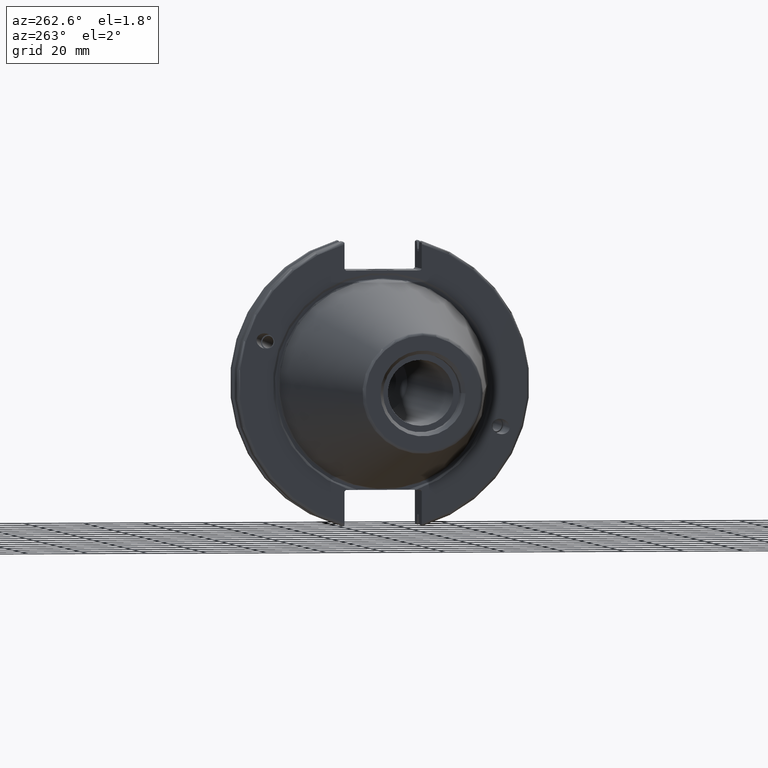
[diagram: clean part render]
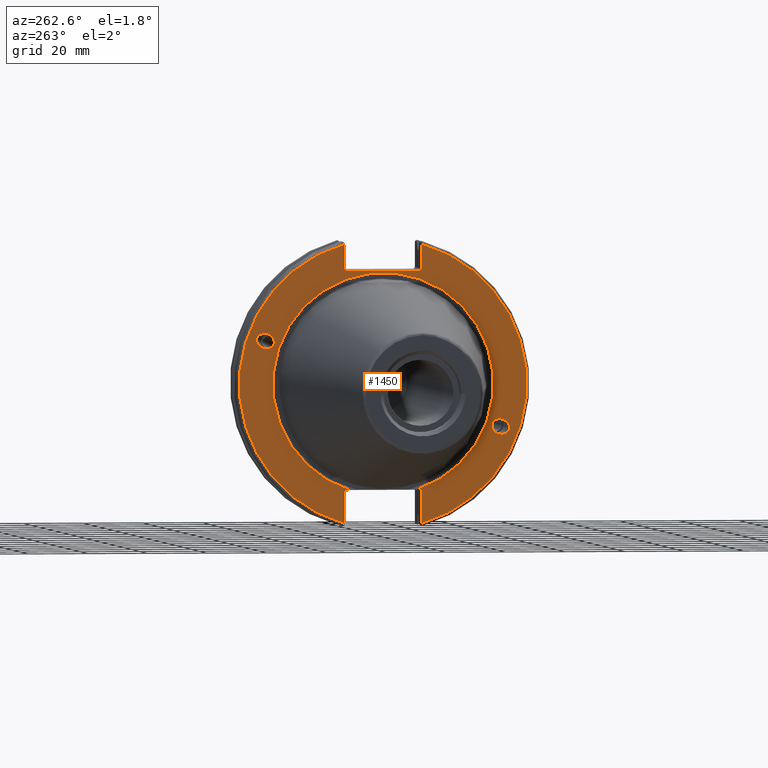
[diagram: same view with one face highlighted and labeled with its STEP entity id]
A machine part, auxiliary view. The second image highlights one B-rep face of the part: STEP entity #1450.
In plain terms, the highlighted planar face has unit normal (-1, 0, 0).
Its self-contained STEP definition (entity closure, byte-faithful):
#67=FACE_BOUND('',#292,.T.);
#68=FACE_BOUND('',#293,.T.);
#91=PLANE('',#1615);
#122=ELLIPSE('',#1562,3.05193647190365,2.50000000000001);
#123=ELLIPSE('',#1596,3.05193647190365,2.50000000000001);
#197=FACE_OUTER_BOUND('',#291,.T.);
#291=EDGE_LOOP('',(#1206,#1207,#1208,#1209,#1210,#1211,#1212,#1213,#1214,
#1215,#1216,#1217,#1218,#1219));
#292=EDGE_LOOP('',(#1220));
#293=EDGE_LOOP('',(#1221));
#380=LINE('',#2505,#472);
#383=LINE('',#2555,#475);
#391=LINE('',#2591,#483);
#395=LINE('',#2659,#487);
#396=LINE('',#2661,#488);
#397=LINE('',#2663,#489);
#398=LINE('',#2664,#490);
#399=LINE('',#2666,#491);
#400=LINE('',#2668,#492);
#401=LINE('',#2672,#493);
#402=LINE('',#2673,#494);
#472=VECTOR('',#1906,10.);
#475=VECTOR('',#1915,10.);
#483=VECTOR('',#1925,10.);
#487=VECTOR('',#1951,10.);
#488=VECTOR('',#1952,10.);
#489=VECTOR('',#1953,10.);
#490=VECTOR('',#1954,10.);
#491=VECTOR('',#1955,10.);
#492=VECTOR('',#1956,10.);
#493=VECTOR('',#1959,10.);
#494=VECTOR('',#1960,10.);
#566=CIRCLE('',#1607,48.2125);
#569=CIRCLE('',#1614,48.2125);
#570=CIRCLE('',#1616,37.);
#634=VERTEX_POINT('',#2218);
#677=VERTEX_POINT('',#2456);
#684=VERTEX_POINT('',#2502);
#685=VERTEX_POINT('',#2504);
#691=VERTEX_POINT('',#2552);
#692=VERTEX_POINT('',#2554);
#700=VERTEX_POINT('',#2583);
#701=VERTEX_POINT('',#2590);
#709=VERTEX_POINT('',#2649);
#710=VERTEX_POINT('',#2658);
#711=VERTEX_POINT('',#2660);
#712=VERTEX_POINT('',#2662);
#713=VERTEX_POINT('',#2665);
#714=VERTEX_POINT('',#2667);
#715=VERTEX_POINT('',#2669);
#716=VERTEX_POINT('',#2671);
#792=EDGE_CURVE('',#634,#634,#122,.T.);
#847=EDGE_CURVE('',#677,#677,#123,.T.);
#857=EDGE_CURVE('',#685,#684,#380,.T.);
#867=EDGE_CURVE('',#692,#691,#383,.T.);
#879=EDGE_CURVE('',#701,#700,#391,.T.);
#884=EDGE_CURVE('',#692,#700,#566,.T.);
#893=EDGE_CURVE('',#685,#709,#569,.T.);
#895=EDGE_CURVE('',#710,#691,#395,.T.);
#896=EDGE_CURVE('',#710,#711,#396,.T.);
#897=EDGE_CURVE('',#712,#711,#397,.T.);
#898=EDGE_CURVE('',#712,#709,#398,.T.);
#899=EDGE_CURVE('',#713,#684,#399,.T.);
#900=EDGE_CURVE('',#713,#714,#400,.T.);
#901=EDGE_CURVE('',#714,#715,#570,.T.);
#902=EDGE_CURVE('',#715,#716,#401,.T.);
#903=EDGE_CURVE('',#701,#716,#402,.T.);
#1206=ORIENTED_EDGE('',*,*,#884,.F.);
#1207=ORIENTED_EDGE('',*,*,#867,.T.);
#1208=ORIENTED_EDGE('',*,*,#895,.F.);
#1209=ORIENTED_EDGE('',*,*,#896,.T.);
#1210=ORIENTED_EDGE('',*,*,#897,.F.);
#1211=ORIENTED_EDGE('',*,*,#898,.T.);
#1212=ORIENTED_EDGE('',*,*,#893,.F.);
#1213=ORIENTED_EDGE('',*,*,#857,.T.);
#1214=ORIENTED_EDGE('',*,*,#899,.F.);
#1215=ORIENTED_EDGE('',*,*,#900,.T.);
#1216=ORIENTED_EDGE('',*,*,#901,.T.);
#1217=ORIENTED_EDGE('',*,*,#902,.T.);
#1218=ORIENTED_EDGE('',*,*,#903,.F.);
#1219=ORIENTED_EDGE('',*,*,#879,.T.);
#1220=ORIENTED_EDGE('',*,*,#792,.T.);
#1221=ORIENTED_EDGE('',*,*,#847,.T.);
#1450=ADVANCED_FACE('',(#197,#67,#68),#91,.T.);
#1562=AXIS2_PLACEMENT_3D('',#2220,#1806,#1807);
#1596=AXIS2_PLACEMENT_3D('',#2458,#1893,#1894);
#1607=AXIS2_PLACEMENT_3D('',#2613,#1931,#1932);
#1614=AXIS2_PLACEMENT_3D('',#2650,#1947,#1948);
#1615=AXIS2_PLACEMENT_3D('',#2657,#1949,#1950);
#1616=AXIS2_PLACEMENT_3D('',#2670,#1957,#1958);
#1806=DIRECTION('center_axis',(1.,0.,0.));
#1807=DIRECTION('ref_axis',(0.,-0.939692620785909,-0.342020143325667));
#1893=DIRECTION('center_axis',(1.,0.,0.));
#1894=DIRECTION('ref_axis',(0.,0.939692620785909,0.342020143325667));
#1906=DIRECTION('',(0.,0.,1.));
#1915=DIRECTION('',(0.,0.,-1.));
#1925=DIRECTION('',(0.,0.,-1.));
#1931=DIRECTION('center_axis',(1.,0.,0.));
#1932=DIRECTION('ref_axis',(0.,-1.,1.60812264967664E-16));
#1947=DIRECTION('center_axis',(1.,0.,0.));
#1948=DIRECTION('ref_axis',(0.,1.,-6.12323399573677E-17));
#1949=DIRECTION('center_axis',(-1.,0.,0.));
#1950=DIRECTION('ref_axis',(0.,0.,1.));
#1951=DIRECTION('',(0.,-0.707106781186549,0.707106781186546));
#1952=DIRECTION('',(0.,1.,0.));
#1953=DIRECTION('',(0.,-0.707106781186549,-0.707106781186546));
#1954=DIRECTION('',(0.,0.,1.));
#1955=DIRECTION('',(0.,0.707106781186548,-0.707106781186548));
#1956=DIRECTION('',(0.,-1.,0.));
#1957=DIRECTION('center_axis',(1.,0.,0.));
#1958=DIRECTION('ref_axis',(0.,0.,-1.));
#1959=DIRECTION('',(0.,-1.,0.));
#1960=DIRECTION('',(0.,0.707106781186549,0.707106781186546));
#2218=CARTESIAN_POINT('',(1.5,-36.5992078912529,-13.3210222701368));
#2220=CARTESIAN_POINT('Origin',(1.5,-39.4670900730082,-14.3648460196781));
#2456=CARTESIAN_POINT('',(1.5,36.5992078912529,13.3210222701368));
#2458=CARTESIAN_POINT('Origin',(1.5,39.4670900730082,14.3648460196781));
#2502=CARTESIAN_POINT('',(1.5,12.95,-35.806));
#2504=CARTESIAN_POINT('',(1.5,12.95,-46.4407434937254));
#2505=CARTESIAN_POINT('',(1.5,12.95,-17.653));
#2552=CARTESIAN_POINT('',(1.5,-12.95,38.219));
#2554=CARTESIAN_POINT('',(1.5,-12.95,46.4407434937254));
#2555=CARTESIAN_POINT('',(1.5,-12.95,18.8595));
#2583=CARTESIAN_POINT('',(1.5,-12.95,-46.4407434937254));
#2590=CARTESIAN_POINT('',(1.5,-12.95,-35.806));
#2591=CARTESIAN_POINT('',(1.5,-12.95,-17.653));
#2613=CARTESIAN_POINT('Origin',(1.5,0.,0.));
#2649=CARTESIAN_POINT('',(1.5,12.95,46.4407434937254));
#2650=CARTESIAN_POINT('Origin',(1.5,0.,0.));
#2657=CARTESIAN_POINT('Origin',(1.5,49.2125,0.));
#2658=CARTESIAN_POINT('',(1.5,-12.45,37.719));
#2659=CARTESIAN_POINT('',(1.5,12.2703750000001,12.998625));
#2660=CARTESIAN_POINT('',(1.5,12.45,37.719));
#2661=CARTESIAN_POINT('',(1.5,24.60625,37.719));
#2662=CARTESIAN_POINT('',(1.5,12.95,38.219));
#2663=CARTESIAN_POINT('',(1.5,12.335875,37.604875));
#2664=CARTESIAN_POINT('',(1.5,12.95,18.8595));
#2665=CARTESIAN_POINT('',(1.5,12.45,-35.306));
#2666=CARTESIAN_POINT('',(1.5,12.939125,-35.795125));
#2667=CARTESIAN_POINT('',(1.49999999999999,11.0673557817575,-35.306));
#2668=CARTESIAN_POINT('',(1.5,24.60625,-35.306));
#2669=CARTESIAN_POINT('',(1.5,-11.0673557817575,-35.306));
#2670=CARTESIAN_POINT('Origin',(1.5,0.,0.));
#2671=CARTESIAN_POINT('',(1.5,-12.45,-35.306));
#2672=CARTESIAN_POINT('',(1.5,24.60625,-35.306));
#2673=CARTESIAN_POINT('',(1.5,11.6671250000001,-11.188875));